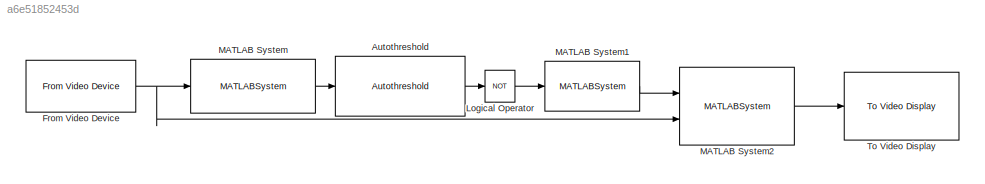
MODEL slx_a6e51852453d
KIND model
CONFIG AbsTol = auto
CONFIG EnableMultiTasking = on
CONFIG FixedStep = auto
CONFIG MaxStep = auto
CONFIG MinStep = auto
CONFIG RelTol = 1e-3
CONFIG SampleTimeConstraint = Unconstrained
CONFIG SolverName = FixedStepAuto
CONFIG StartTime = 0.0
CONFIG StopTime = 10.0
BLOCK [Reference] Autothreshold  REF=visionconversions/Autothreshold
  Ports = [1, 1]
  SourceBlock = visionconversions/Autothreshold
  SourceProductBaseCode = VP
  SourceType = Autothreshold
BLOCK [Reference] From Video Device  REF=imaqlib/From Video Device
  Ports = [0, 1]
  SourceBlock = imaqlib/From Video Device
  SourceProductBaseCode = IA
  SourceType = From Video Device
  UserDataPersistent = on
BLOCK [Logic] Logical Operator
  AllPortsSameDT = off
  Operator = NOT
  OutDataTypeStr = boolean
  Ports = [1, 1]
BLOCK [MATLABSystem] MATLAB System
  MaskDisplay = disp('RGB to Gray');\nport_label('input',1,'RGB');\nport_label('output',1,'Gray');
  MaskType = Rgb2GraySystem
  Ports = [1, 1]
  SimulateUsing = Code generation
  System = Rgb2GraySystem
BLOCK [MATLABSystem] MATLAB System1
  Deg = 3
  MaskDisplay = disp('BW to P');\nport_label('input',1,'BW');\nport_label('output',1,'P');
  MaskType = PolyfitSystem
  Ports = [1, 1]
  SimulateUsing = Code generation
  System = PolyfitSystem
BLOCK [MATLABSystem] MATLAB System2
  MaskDisplay = disp('P to y');\nport_label('input',1,'P');\nport_label('input',2,'RGB');\nport_label('output',1,'output');
  MaskType = PolyvalColorSystem
  Ports = [2, 1]
  SimulateUsing = Code generation
  System = PolyvalColorSystem
BLOCK [Reference] To Video Display  REF=visionsinks/To Video Display
  Ports = [1]
  SourceBlock = visionsinks/To Video Display
  SourceProductBaseCode = VP
  SourceType = To Video Display
LINE Autothreshold:1 -> Logical Operator:1
NET From Video Device:1 -> MATLAB System2:2, MATLAB System:1
LINE Logical Operator:1 -> MATLAB System1:1
LINE MATLAB System1:1 -> MATLAB System2:1
LINE MATLAB System2:1 -> To Video Display:1
LINE MATLAB System:1 -> Autothreshold:1
note: NET lines group one-source signal fan-out (src -> all destinations, sorted); 1:1 wires keep LINE
